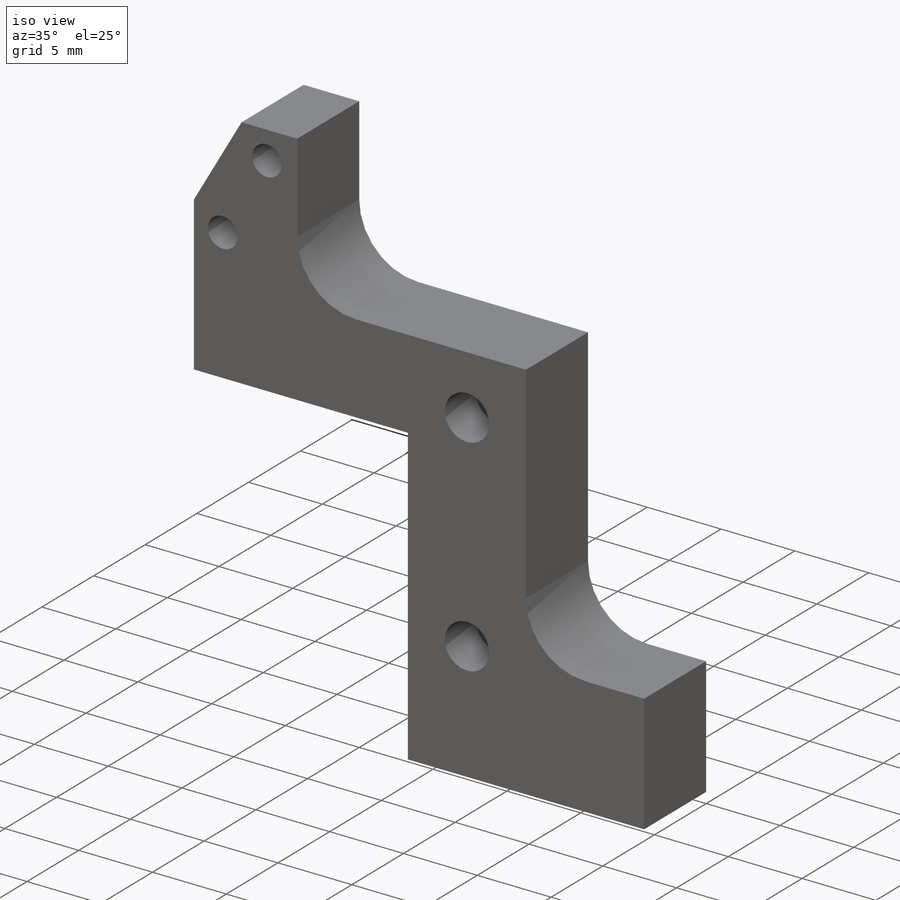
[diagram: iso view]
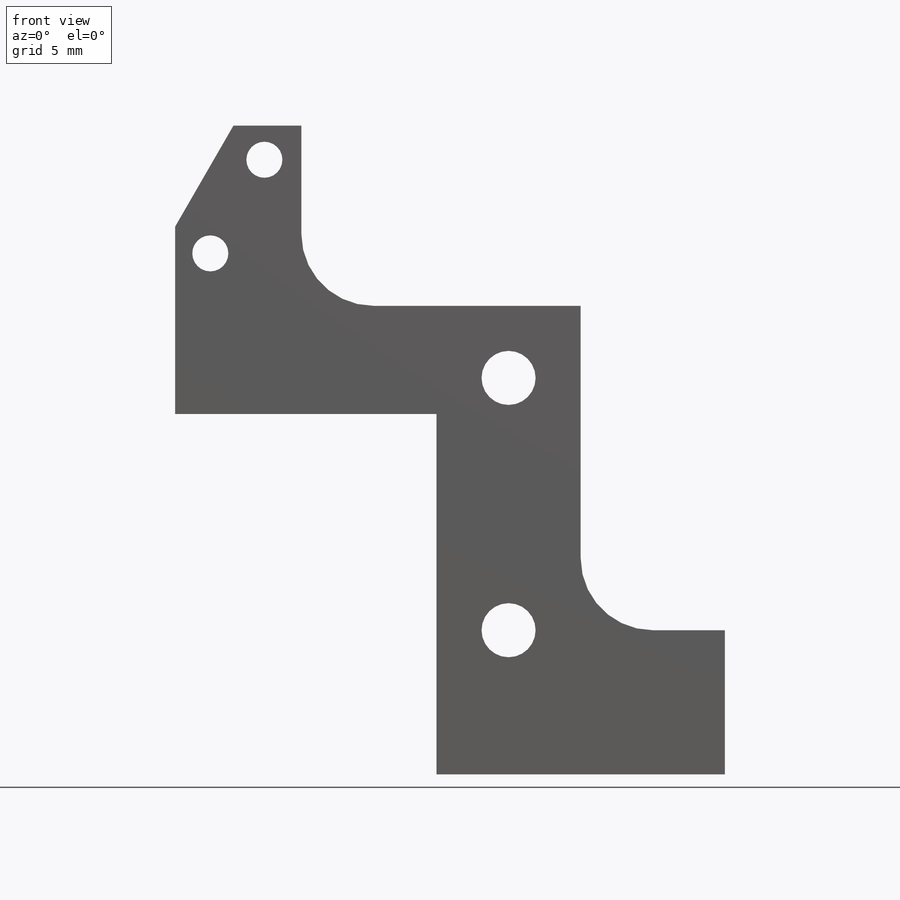
[diagram: front view]
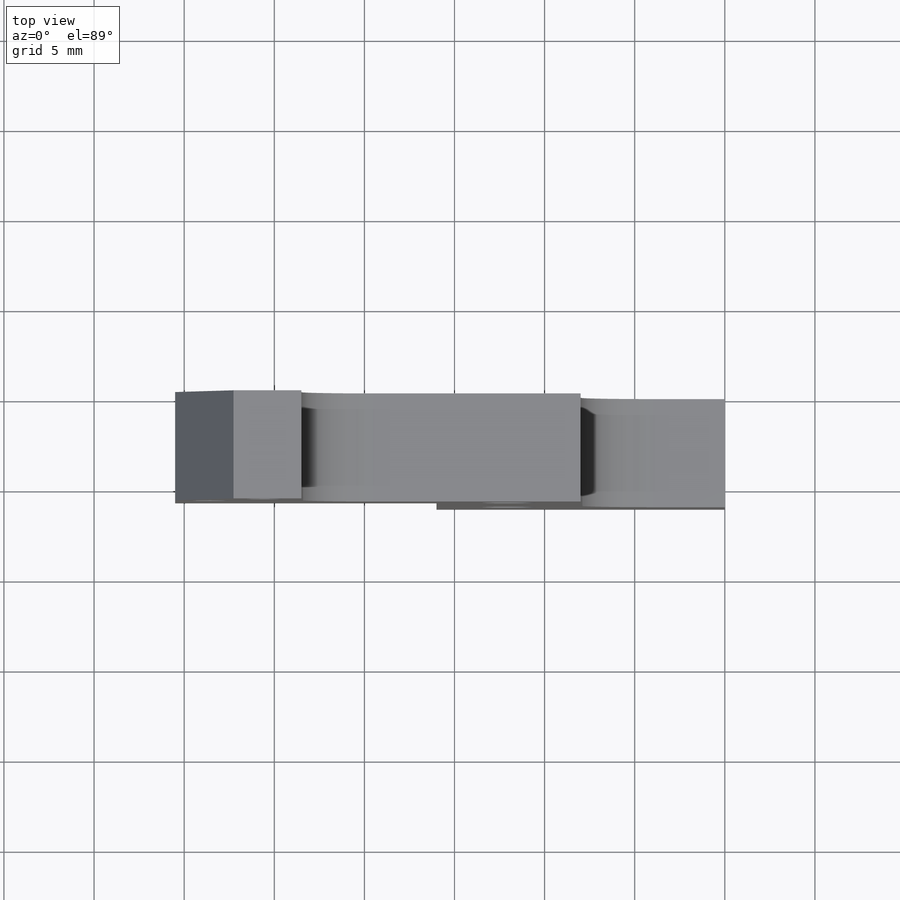
[diagram: top view]
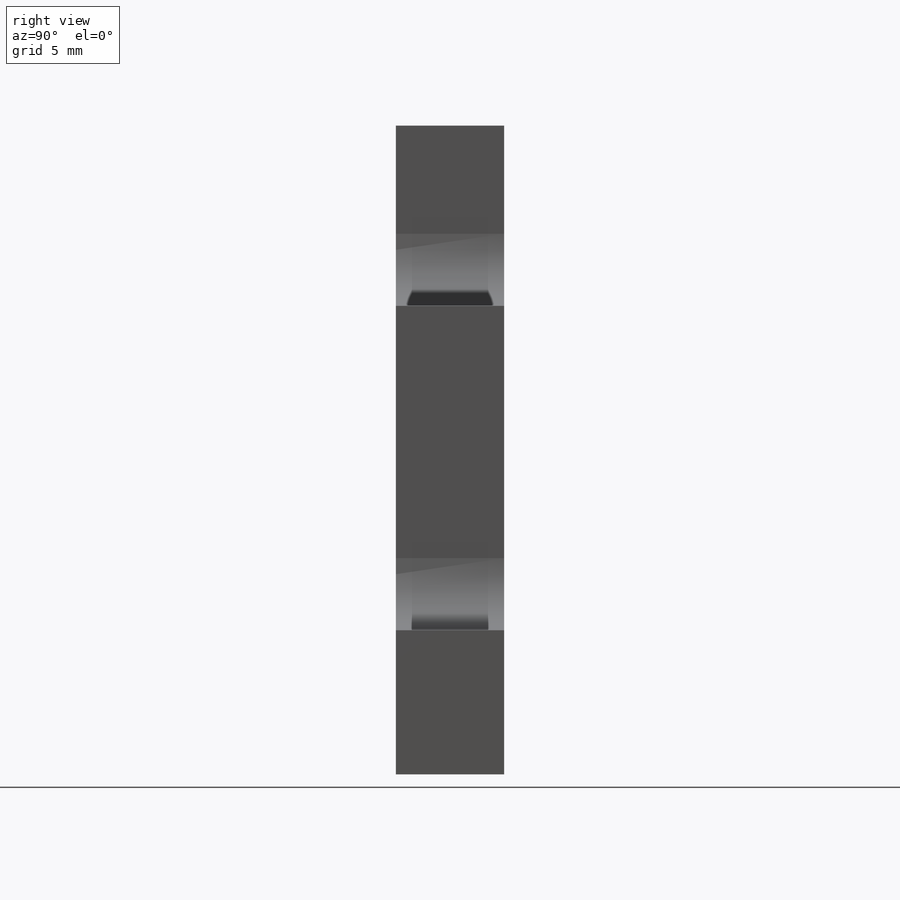
[diagram: right view]
SOLIDWORKS PART (.sldprt)
format: sldprt  version: not decoded by parser v0  size: 275,456 bytes
history: native  units: mm
features: sketch x7, fillet x2, hole x2, thread x2, cut_extrude x2, material x1, extrude x1 (+11 scaffold rows collapsed)
feature tree (28):
  scaffold x11  (default folders/planes/origin — collapsed)
  material  "Material <not specified>"
  sketch  "Sketch1"  dims[c1.D11=~0.897668mm c1.D15=2.0mm c1.D16=2.0mm c1.D1=16.0mm c1.D2=8.0mm c1.D3=18.0mm c1.D4=8.0mm c1.D5=20.0mm c1.D6=14.5mm c1.D7=7.0mm c1.D8=10.0mm c1.D9=10.0mm c2.D9=30.0deg c2.D10=5.6mm c2.D11=1.95mm c2.D12=7.09mm c2.D13=7.09mm c3.D13=30.0deg c3.D14=6.0mm]
  extrude  "Boss-Extrude1"  Depth=6mm
  fillet  "Fillet1"  Radius=4mm
  fillet  "Fillet2"  Radius=4mm
  hole  "M3x0.5 Tapped Hole1"  Diameter=2.5mm Depth=4mm
  sketch  "Sketch5"  dims[D1=3.0mm D2=13.0mm D3=3.0mm]
  sketch  "Sketch4"  dims[hole-wizard template sketch: 40 standard entries collapsed; hole parameters kept: c13.Tap Drill Depth=4.0mm c13.Near C'Sink Dia.=3.05mm c13.D4=~33.297463mm c13.Near C'Sink Angle=90.0deg c14.D5=~14.816244mm c14.Drill Angle=118.0deg]
  thread  "Hole Thread1"  Diameter=4mm  [1 undecoded]
  thread  "Hole Thread2"  Diameter=4mm  [1 undecoded]
  hole  "Ø2.0 (2) Diameter Hole1"  Diameter=2mm Depth=3mm
  sketch  "Sketch7"  dims[D1=3.0mm D2=8.0mm]
  sketch  "Sketch6"  dims[hole-wizard template sketch: 47 standard entries collapsed; hole parameters kept: c15.Hole Depth=3.0mm c15.D3=~14.816244mm c15.Drill Angle=118.0deg]
  sketch  "Sketch8"  dims[D2=6.0mm D3=6.0mm D1=14.0mm D4=12.0mm D5=12.0mm D6=8.0mm]
  cut_extrude  "Cut-Extrude1"  Depth=3mm
  sketch  "Sketch9"  dims[D1=3.0mm D2=3.0mm]
  cut_extrude  "Cut-Extrude2"  [1 undecoded]
decode coverage: 15 of 16 modeling features carry decoded parameters
note: ~ marks probable driven/reference dimensions
note: 3 parameter values undecoded
note: suppression state not decoded; provenance and decode notes live in map.json
